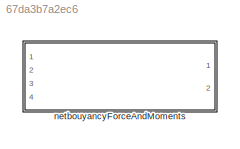
MODEL slx_67da3b7a2ec6
KIND library
CONFIG AbsTol = auto
CONFIG EnableMultiTasking = off
CONFIG FixedStep = auto
CONFIG MaxStep = auto
CONFIG MinStep = auto
CONFIG RelTol = 1e-3
CONFIG SampleTimeConstraint = Unconstrained
CONFIG SolverName = VariableStepAuto
CONFIG StartTime = 0.0
CONFIG StopTime = 10.0
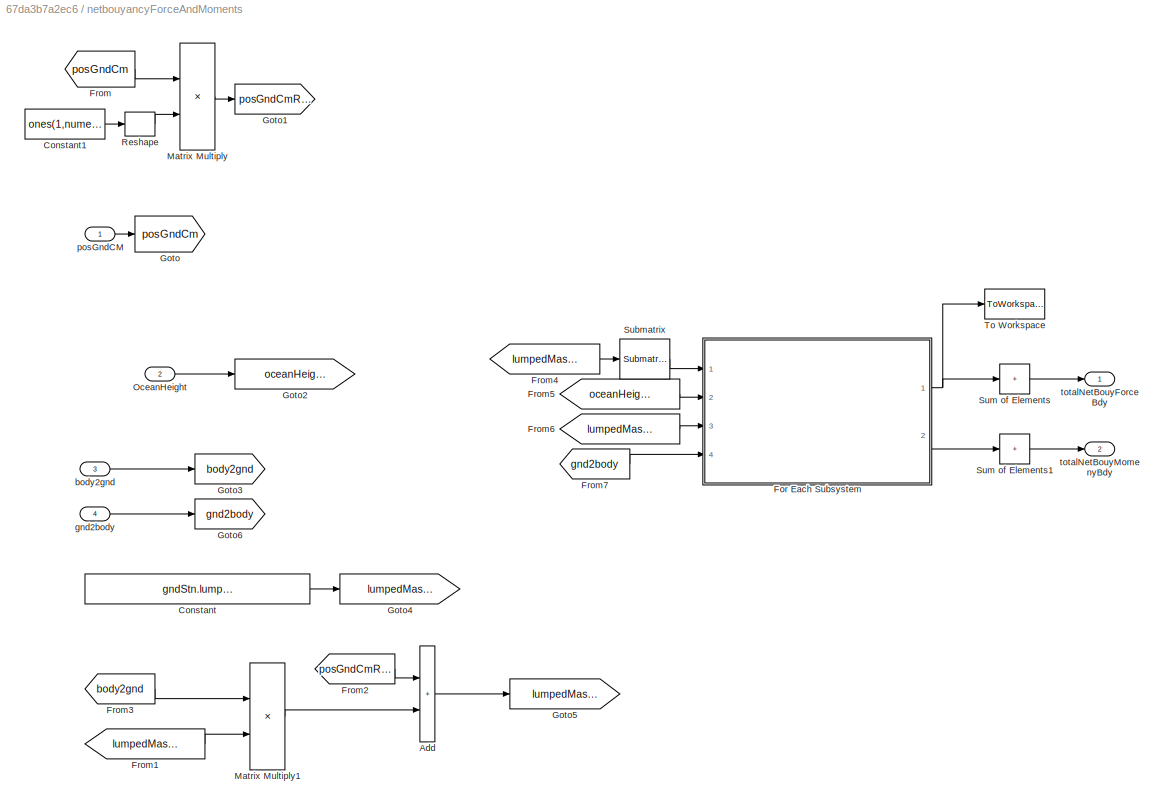
BLOCK [SubSystem] netbouyancyForceAndMoments
  Ports = [4, 2]
  RequestExecContextInheritance = off
BLOCK [Sum] netbouyancyForceAndMoments/Add
  IconShape = rectangular
  Ports = [2, 1]
BLOCK [Constant] netbouyancyForceAndMoments/Constant
  Value = gndStn.lumpedMassPositionMatrixBdy.Value
BLOCK [Constant] netbouyancyForceAndMoments/Constant1
  Value = ones(1,numel(gndStn.lumpedMassPositionMatrixBdy.Value)/3)
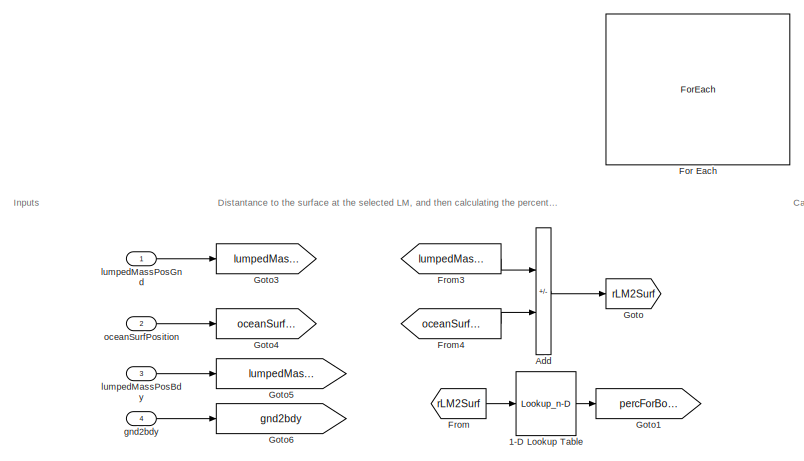
[diagram: netbouyancyForceAndMoments/For Each Subsystem - part 1/2, left side, full height]
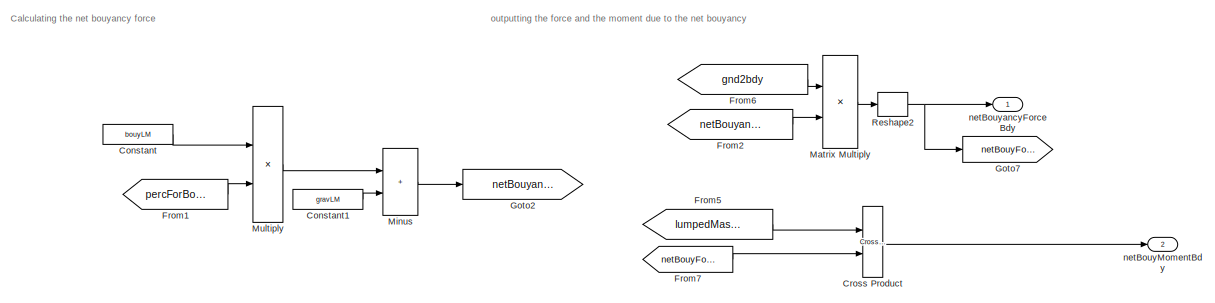
[diagram: netbouyancyForceAndMoments/For Each Subsystem - part 2/2, bottom right region]
BLOCK [SubSystem] netbouyancyForceAndMoments/For Each Subsystem
  Ports = [4, 2]
  RequestExecContextInheritance = off
  TreatAsAtomicUnit = on
BLOCK [Lookup_n-D] netbouyancyForceAndMoments/For Each Subsystem/1-D Lookup Table
  BreakpointsForDimension1 = [-mR, .5*-mR, 0, .5*mR, mR]
  ExtrapMethod = Clip
  InputPortMap = u0
  InternalRulePriority = Speed
  NumberOfTableDimensions = 1
  Ports = [1, 1]
  RndMeth = Simplest
  Table = [0, .25, .5 ,.75,1]
BLOCK [Sum] netbouyancyForceAndMoments/For Each Subsystem/Add
  IconShape = rectangular
  Inputs = -+
  Ports = [2, 1]
BLOCK [Constant] netbouyancyForceAndMoments/For Each Subsystem/Constant
  Value = bouyLM
BLOCK [Constant] netbouyancyForceAndMoments/For Each Subsystem/Constant1
  Value = gravLM
BLOCK [Reference] netbouyancyForceAndMoments/For Each Subsystem/Cross Product  REF=vrlib/Utilities/Cross Product
  Ports = [2, 1]
  SourceBlock = vrlib/Utilities/Cross Product
  SourceProductBaseCode = SL
  SourceType = Cross Product
BLOCK [ForEach] netbouyancyForceAndMoments/For Each Subsystem/For Each
  DisableCoverage = on
  IterateSubsysMaskParameter = off,off,off
  Ports = []
  SubsysMaskParameterIterationDimension = 1,1,1
  SubsysMaskParameterIterationStepSize = 1,1,1
BLOCK [From] netbouyancyForceAndMoments/For Each Subsystem/From
  GotoTag = rLM2Surf
BLOCK [From] netbouyancyForceAndMoments/For Each Subsystem/From1
  GotoTag = percForBouyForce
BLOCK [From] netbouyancyForceAndMoments/For Each Subsystem/From2
  GotoTag = netBouyancyForce
BLOCK [From] netbouyancyForceAndMoments/For Each Subsystem/From3
  GotoTag = lumpedMassPosGnd
BLOCK [From] netbouyancyForceAndMoments/For Each Subsystem/From4
  GotoTag = oceanSurfPosition
BLOCK [From] netbouyancyForceAndMoments/For Each Subsystem/From5
  GotoTag = lumpedMassPositionBdy
BLOCK [From] netbouyancyForceAndMoments/For Each Subsystem/From6
  GotoTag = gnd2bdy
BLOCK [From] netbouyancyForceAndMoments/For Each Subsystem/From7
  GotoTag = netBouyForceBdy
BLOCK [Goto] netbouyancyForceAndMoments/For Each Subsystem/Goto
  GotoTag = rLM2Surf
BLOCK [Goto] netbouyancyForceAndMoments/For Each Subsystem/Goto1
  GotoTag = percForBouyForce
BLOCK [Goto] netbouyancyForceAndMoments/For Each Subsystem/Goto2
  GotoTag = netBouyancyForce
BLOCK [Goto] netbouyancyForceAndMoments/For Each Subsystem/Goto3
  GotoTag = lumpedMassPosGnd
BLOCK [Goto] netbouyancyForceAndMoments/For Each Subsystem/Goto4
  GotoTag = oceanSurfPosition
BLOCK [Goto] netbouyancyForceAndMoments/For Each Subsystem/Goto5
  GotoTag = lumpedMassPositionBdy
BLOCK [Goto] netbouyancyForceAndMoments/For Each Subsystem/Goto6
  GotoTag = gnd2bdy
BLOCK [Goto] netbouyancyForceAndMoments/For Each Subsystem/Goto7
  GotoTag = netBouyForceBdy
BLOCK [Product] netbouyancyForceAndMoments/For Each Subsystem/Matrix Multiply
  Multiplication = Matrix(*)
  Ports = [2, 1]
BLOCK [Sum] netbouyancyForceAndMoments/For Each Subsystem/Minus
  IconShape = rectangular
  Ports = [2, 1]
BLOCK [Product] netbouyancyForceAndMoments/For Each Subsystem/Multiply
  Ports = [2, 1]
BLOCK [Reshape] netbouyancyForceAndMoments/For Each Subsystem/Reshape2
  OutputDimensionality = Column vector (2-D)
  Ports = [1, 1]
BLOCK [Inport] netbouyancyForceAndMoments/For Each Subsystem/gnd2bdy 
  Port = 4
BLOCK [Inport] netbouyancyForceAndMoments/For Each Subsystem/lumpedMassPosBdy
  Partition = on
  PartitionDimension = 2
  PartitionOffset = 0
  PartitionWidth = 1
  Port = 3
BLOCK [Inport] netbouyancyForceAndMoments/For Each Subsystem/lumpedMassPosGnd
  Partition = on
  PartitionDimension = 2
  PartitionOffset = 0
  PartitionWidth = 1
BLOCK [Outport] netbouyancyForceAndMoments/For Each Subsystem/netBouyMomentBdy
  ConcatenationDimension = 2
  Port = 2
  PortDimensions = [3,1]
  VectorParamsAs1DForOutWhenUnconnected = off
BLOCK [Outport] netbouyancyForceAndMoments/For Each Subsystem/netBouyancyForceBdy
  ConcatenationDimension = 2
  VectorParamsAs1DForOutWhenUnconnected = off
BLOCK [Inport] netbouyancyForceAndMoments/For Each Subsystem/oceanSurfPosition
  Partition = on
  PartitionDimension = 1
  PartitionOffset = 0
  PartitionWidth = 1
  Port = 2
BLOCK [From] netbouyancyForceAndMoments/From
  GotoTag = posGndCm
BLOCK [From] netbouyancyForceAndMoments/From1
  GotoTag = lumpedMassPosBdy
BLOCK [From] netbouyancyForceAndMoments/From2
  GotoTag = posGndCmRep
BLOCK [From] netbouyancyForceAndMoments/From3
  GotoTag = body2gnd
BLOCK [From] netbouyancyForceAndMoments/From4
  GotoTag = lumpedMassPosGnd
BLOCK [From] netbouyancyForceAndMoments/From5
  GotoTag = oceanHeightPosition
BLOCK [From] netbouyancyForceAndMoments/From6
  GotoTag = lumpedMassPosBdy
BLOCK [From] netbouyancyForceAndMoments/From7
  GotoTag = gnd2body
BLOCK [Goto] netbouyancyForceAndMoments/Goto
  GotoTag = posGndCm
BLOCK [Goto] netbouyancyForceAndMoments/Goto1
  GotoTag = posGndCmRep
BLOCK [Goto] netbouyancyForceAndMoments/Goto2
  GotoTag = oceanHeightPosition
BLOCK [Goto] netbouyancyForceAndMoments/Goto3
  GotoTag = body2gnd
BLOCK [Goto] netbouyancyForceAndMoments/Goto4
  GotoTag = lumpedMassPosBdy
BLOCK [Goto] netbouyancyForceAndMoments/Goto5
  GotoTag = lumpedMassPosGnd
BLOCK [Goto] netbouyancyForceAndMoments/Goto6
  GotoTag = gnd2body
BLOCK [Product] netbouyancyForceAndMoments/Matrix Multiply
  Multiplication = Matrix(*)
  Ports = [2, 1]
BLOCK [Product] netbouyancyForceAndMoments/Matrix Multiply1
  Multiplication = Matrix(*)
  Ports = [2, 1]
BLOCK [Inport] netbouyancyForceAndMoments/OceanHeight
  Port = 2
BLOCK [Reshape] netbouyancyForceAndMoments/Reshape
  OutputDimensionality = Row vector (2-D)
  Ports = [1, 1]
BLOCK [Reference] netbouyancyForceAndMoments/Submatrix  REF=matrix_library/Submatrix
  Ports = [1, 1]
  SourceBlock = matrix_library/Submatrix
  SourceProductBaseCode = SL
  SourceType = Submatrix
BLOCK [Sum] netbouyancyForceAndMoments/Sum of Elements
  CollapseDim = 2
  CollapseMode = Specified dimension
  IconShape = rectangular
  Inputs = +
  Ports = [1, 1]
BLOCK [Sum] netbouyancyForceAndMoments/Sum of Elements1
  CollapseDim = 2
  CollapseMode = Specified dimension
  IconShape = rectangular
  Inputs = +
  Ports = [1, 1]
BLOCK [ToWorkspace] netbouyancyForceAndMoments/To Workspace
  FixptAsFi = on
  MaxDataPoints = inf
  Ports = [1]
  SampleTime = -1
  SaveFormat = Timeseries
  VariableName = bouyancyMatrix
BLOCK [Inport] netbouyancyForceAndMoments/body2gnd
  Port = 3
BLOCK [Inport] netbouyancyForceAndMoments/gnd2body 
  Port = 4
BLOCK [Inport] netbouyancyForceAndMoments/posGndCM
BLOCK [Outport] netbouyancyForceAndMoments/totalNetBouyForceBdy
  VectorParamsAs1DForOutWhenUnconnected = off
BLOCK [Outport] netbouyancyForceAndMoments/totalNetBouyMomenyBdy
  Port = 2
  VectorParamsAs1DForOutWhenUnconnected = off
ANNOTATION netbouyancyForceAndMoments/For Each Subsystem: Calculating the net bouyancy force
ANNOTATION netbouyancyForceAndMoments/For Each Subsystem: Distantance to the surface at the selected LM, and then calculating the percent bouyancy
ANNOTATION netbouyancyForceAndMoments/For Each Subsystem: Inputs
ANNOTATION netbouyancyForceAndMoments/For Each Subsystem: outputting the force and the moment due to the net bouyancy
LINE netbouyancyForceAndMoments/Add:1 -> netbouyancyForceAndMoments/Goto5:1
LINE netbouyancyForceAndMoments/Constant1:1 -> netbouyancyForceAndMoments/Reshape:1
LINE netbouyancyForceAndMoments/Constant:1 -> netbouyancyForceAndMoments/Goto4:1
LINE netbouyancyForceAndMoments/For Each Subsystem/1-D Lookup Table:1 -> netbouyancyForceAndMoments/For Each Subsystem/Goto1:1
LINE netbouyancyForceAndMoments/For Each Subsystem/Add:1 -> netbouyancyForceAndMoments/For Each Subsystem/Goto:1
LINE netbouyancyForceAndMoments/For Each Subsystem/Constant1:1 -> netbouyancyForceAndMoments/For Each Subsystem/Minus:2
LINE netbouyancyForceAndMoments/For Each Subsystem/Constant:1 -> netbouyancyForceAndMoments/For Each Subsystem/Multiply:1
LINE netbouyancyForceAndMoments/For Each Subsystem/Cross Product:1 -> netbouyancyForceAndMoments/For Each Subsystem/netBouyMomentBdy:1
LINE netbouyancyForceAndMoments/For Each Subsystem/From1:1 -> netbouyancyForceAndMoments/For Each Subsystem/Multiply:2
LINE netbouyancyForceAndMoments/For Each Subsystem/From2:1 -> netbouyancyForceAndMoments/For Each Subsystem/Matrix Multiply:2
LINE netbouyancyForceAndMoments/For Each Subsystem/From3:1 -> netbouyancyForceAndMoments/For Each Subsystem/Add:1
LINE netbouyancyForceAndMoments/For Each Subsystem/From4:1 -> netbouyancyForceAndMoments/For Each Subsystem/Add:2
LINE netbouyancyForceAndMoments/For Each Subsystem/From5:1 -> netbouyancyForceAndMoments/For Each Subsystem/Cross Product:1
LINE netbouyancyForceAndMoments/For Each Subsystem/From6:1 -> netbouyancyForceAndMoments/For Each Subsystem/Matrix Multiply:1
LINE netbouyancyForceAndMoments/For Each Subsystem/From7:1 -> netbouyancyForceAndMoments/For Each Subsystem/Cross Product:2
LINE netbouyancyForceAndMoments/For Each Subsystem/From:1 -> netbouyancyForceAndMoments/For Each Subsystem/1-D Lookup Table:1
LINE netbouyancyForceAndMoments/For Each Subsystem/Matrix Multiply:1 -> netbouyancyForceAndMoments/For Each Subsystem/Reshape2:1
LINE netbouyancyForceAndMoments/For Each Subsystem/Minus:1 -> netbouyancyForceAndMoments/For Each Subsystem/Goto2:1
LINE netbouyancyForceAndMoments/For Each Subsystem/Multiply:1 -> netbouyancyForceAndMoments/For Each Subsystem/Minus:1
NET netbouyancyForceAndMoments/For Each Subsystem/Reshape2:1 -> netbouyancyForceAndMoments/For Each Subsystem/Goto7:1, netbouyancyForceAndMoments/For Each Subsystem/netBouyancyForceBdy:1
LINE netbouyancyForceAndMoments/For Each Subsystem/gnd2bdy :1 -> netbouyancyForceAndMoments/For Each Subsystem/Goto6:1
LINE netbouyancyForceAndMoments/For Each Subsystem/lumpedMassPosBdy:1 -> netbouyancyForceAndMoments/For Each Subsystem/Goto5:1
LINE netbouyancyForceAndMoments/For Each Subsystem/lumpedMassPosGnd:1 -> netbouyancyForceAndMoments/For Each Subsystem/Goto3:1
LINE netbouyancyForceAndMoments/For Each Subsystem/oceanSurfPosition:1 -> netbouyancyForceAndMoments/For Each Subsystem/Goto4:1
NET netbouyancyForceAndMoments/For Each Subsystem:1 -> netbouyancyForceAndMoments/Sum of Elements:1, netbouyancyForceAndMoments/To Workspace:1
LINE netbouyancyForceAndMoments/For Each Subsystem:2 -> netbouyancyForceAndMoments/Sum of Elements1:1
LINE netbouyancyForceAndMoments/From1:1 -> netbouyancyForceAndMoments/Matrix Multiply1:2
LINE netbouyancyForceAndMoments/From2:1 -> netbouyancyForceAndMoments/Add:1
LINE netbouyancyForceAndMoments/From3:1 -> netbouyancyForceAndMoments/Matrix Multiply1:1
LINE netbouyancyForceAndMoments/From4:1 -> netbouyancyForceAndMoments/Submatrix:1
LINE netbouyancyForceAndMoments/From5:1 -> netbouyancyForceAndMoments/For Each Subsystem:2
LINE netbouyancyForceAndMoments/From6:1 -> netbouyancyForceAndMoments/For Each Subsystem:3
LINE netbouyancyForceAndMoments/From7:1 -> netbouyancyForceAndMoments/For Each Subsystem:4
LINE netbouyancyForceAndMoments/From:1 -> netbouyancyForceAndMoments/Matrix Multiply:1
LINE netbouyancyForceAndMoments/Matrix Multiply1:1 -> netbouyancyForceAndMoments/Add:2
LINE netbouyancyForceAndMoments/Matrix Multiply:1 -> netbouyancyForceAndMoments/Goto1:1
LINE netbouyancyForceAndMoments/OceanHeight:1 -> netbouyancyForceAndMoments/Goto2:1
LINE netbouyancyForceAndMoments/Reshape:1 -> netbouyancyForceAndMoments/Matrix Multiply:2
LINE netbouyancyForceAndMoments/Submatrix:1 -> netbouyancyForceAndMoments/For Each Subsystem:1
LINE netbouyancyForceAndMoments/Sum of Elements1:1 -> netbouyancyForceAndMoments/totalNetBouyMomenyBdy:1
LINE netbouyancyForceAndMoments/Sum of Elements:1 -> netbouyancyForceAndMoments/totalNetBouyForceBdy:1
LINE netbouyancyForceAndMoments/body2gnd:1 -> netbouyancyForceAndMoments/Goto3:1
LINE netbouyancyForceAndMoments/gnd2body :1 -> netbouyancyForceAndMoments/Goto6:1
LINE netbouyancyForceAndMoments/posGndCM:1 -> netbouyancyForceAndMoments/Goto:1
note: NET lines group one-source signal fan-out (src -> all destinations, sorted); 1:1 wires keep LINE
